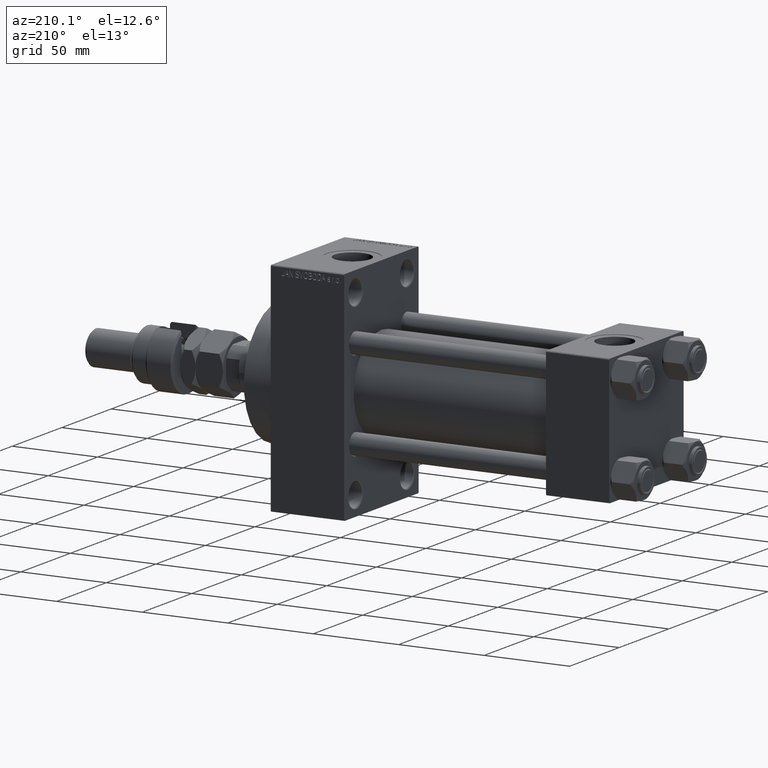
[diagram: clean part render]
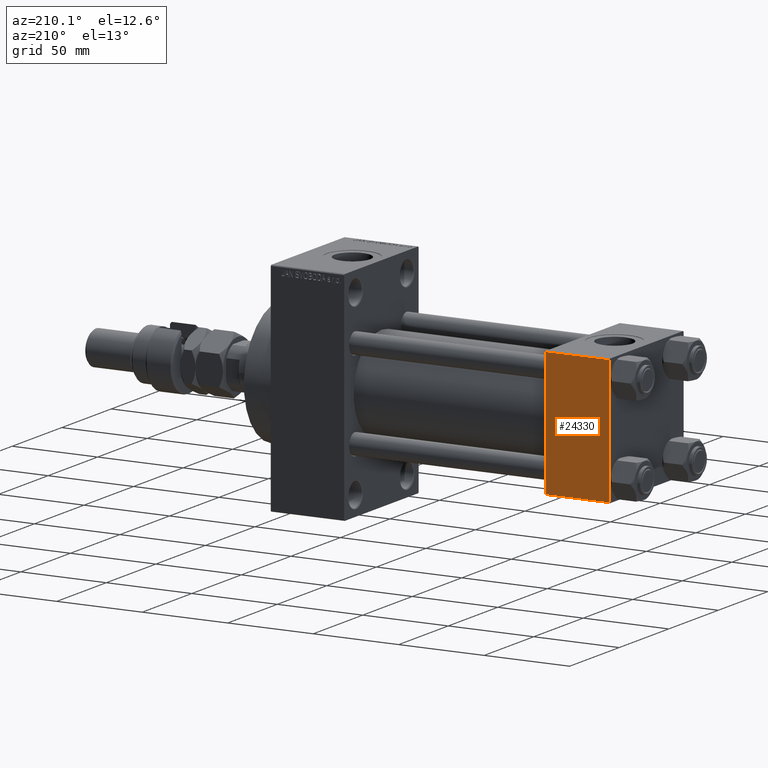
[diagram: same view with one face highlighted and labeled with its STEP entity id]
A machine part, auxiliary view. The second image highlights one B-rep face of the part: STEP entity #24330.
In plain terms, the highlighted planar face has unit normal (0, 1, 0).
Its self-contained STEP definition (entity closure, byte-faithful):
#778 = VECTOR ( 'NONE', #17499, 1000.000000000000000 ) ;
#1505 = CARTESIAN_POINT ( 'NONE',  ( 37.00000000000000000, 37.49999999999999289, 37.50000000000000000 ) ) ;
#1607 = CARTESIAN_POINT ( 'NONE',  ( 37.00000000000000000, 37.49999999999999289, 37.00000000000000000 ) ) ;
#2029 = EDGE_CURVE ( 'NONE', #42489, #36938, #44159, .T. ) ;
#2942 = ORIENTED_EDGE ( 'NONE', *, *, #42806, .F. ) ;
#3111 = EDGE_CURVE ( 'NONE', #6511, #42489, #7803, .T. ) ;
#6511 = VERTEX_POINT ( 'NONE', #13738 ) ;
#6868 = LINE ( 'NONE', #10675, #48405 ) ;
#7114 = DIRECTION ( 'NONE',  ( 0.000000000000000000, 0.000000000000000000, -1.000000000000000000 ) ) ;
#7803 = LINE ( 'NONE', #22574, #11373 ) ;
#10675 = CARTESIAN_POINT ( 'NONE',  ( 0.000000000000000000, 37.49999999999999289, 37.50000000000000000 ) ) ;
#11373 = VECTOR ( 'NONE', #30700, 1000.000000000000000 ) ;
#13443 = PLANE ( 'NONE',  #43248 ) ;
#13738 = CARTESIAN_POINT ( 'NONE',  ( 0.000000000000000000, 37.49999999999999289, 37.00000000000000000 ) ) ;
#14316 = VERTEX_POINT ( 'NONE', #17712 ) ;
#17499 = DIRECTION ( 'NONE',  ( 0.000000000000000000, 0.000000000000000000, -1.000000000000000000 ) ) ;
#17712 = CARTESIAN_POINT ( 'NONE',  ( 0.000000000000000000, 37.49999999999999289, -36.99999999999998579 ) ) ;
#18529 = LINE ( 'NONE', #34018, #24256 ) ;
#18819 = CARTESIAN_POINT ( 'NONE',  ( 37.00000000000000000, 37.49999999999999289, -36.99999999999998579 ) ) ;
#22574 = CARTESIAN_POINT ( 'NONE',  ( 37.00000000000000000, 37.49999999999999289, 37.00000000000000000 ) ) ;
#24256 = VECTOR ( 'NONE', #38075, 1000.000000000000000 ) ;
#24330 = ADVANCED_FACE ( 'NONE', ( #43926 ), #13443, .T. ) ;
#27093 = ORIENTED_EDGE ( 'NONE', *, *, #2029, .T. ) ;
#28966 = DIRECTION ( 'NONE',  ( -0.000000000000000000, 1.000000000000000000, 0.000000000000000000 ) ) ;
#30700 = DIRECTION ( 'NONE',  ( 1.000000000000000000, 0.000000000000000000, 0.000000000000000000 ) ) ;
#33944 = EDGE_LOOP ( 'NONE', ( #27093, #41349, #2942, #37990 ) ) ;
#34018 = CARTESIAN_POINT ( 'NONE',  ( 37.00000000000000000, 37.49999999999999289, -36.99999999999998579 ) ) ;
#36804 = CARTESIAN_POINT ( 'NONE',  ( 37.00000000000000000, 37.49999999999999289, 37.50000000000000000 ) ) ;
#36938 = VERTEX_POINT ( 'NONE', #18819 ) ;
#37990 = ORIENTED_EDGE ( 'NONE', *, *, #3111, .T. ) ;
#38075 = DIRECTION ( 'NONE',  ( -1.000000000000000000, 0.000000000000000000, 0.000000000000000000 ) ) ;
#41349 = ORIENTED_EDGE ( 'NONE', *, *, #47451, .T. ) ;
#42489 = VERTEX_POINT ( 'NONE', #1607 ) ;
#42806 = EDGE_CURVE ( 'NONE', #6511, #14316, #6868, .T. ) ;
#43248 = AXIS2_PLACEMENT_3D ( 'NONE', #1505, #28966, #47997 ) ;
#43926 = FACE_OUTER_BOUND ( 'NONE', #33944, .T. ) ;
#44159 = LINE ( 'NONE', #36804, #778 ) ;
#47451 = EDGE_CURVE ( 'NONE', #36938, #14316, #18529, .T. ) ;
#47997 = DIRECTION ( 'NONE',  ( 0.000000000000000000, -0.000000000000000000, 1.000000000000000000 ) ) ;
#48405 = VECTOR ( 'NONE', #7114, 1000.000000000000000 ) ;